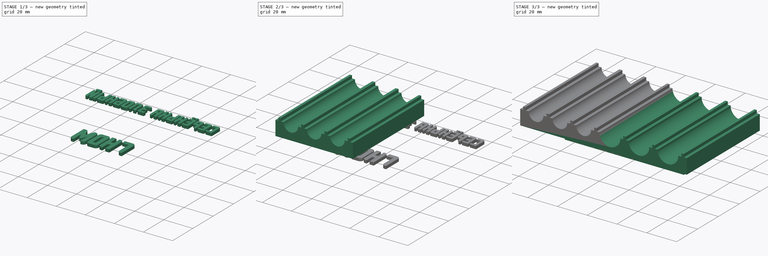
[diagram: build sequence overview — one tinted view per stage of 3, left to right]
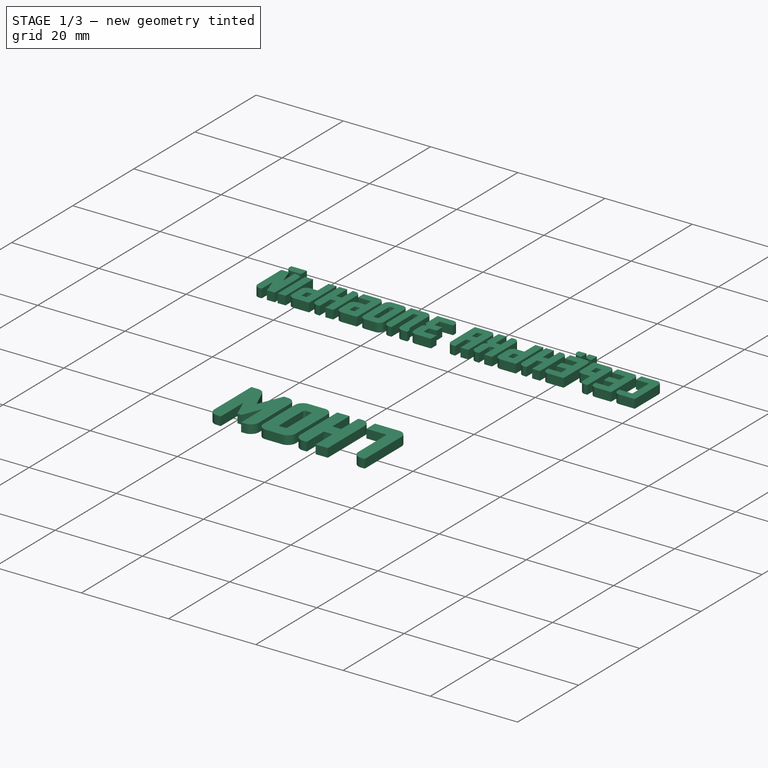
[diagram: stage 1 of 3 — iso view after this stage's code; geometry added in this stage tinted green]
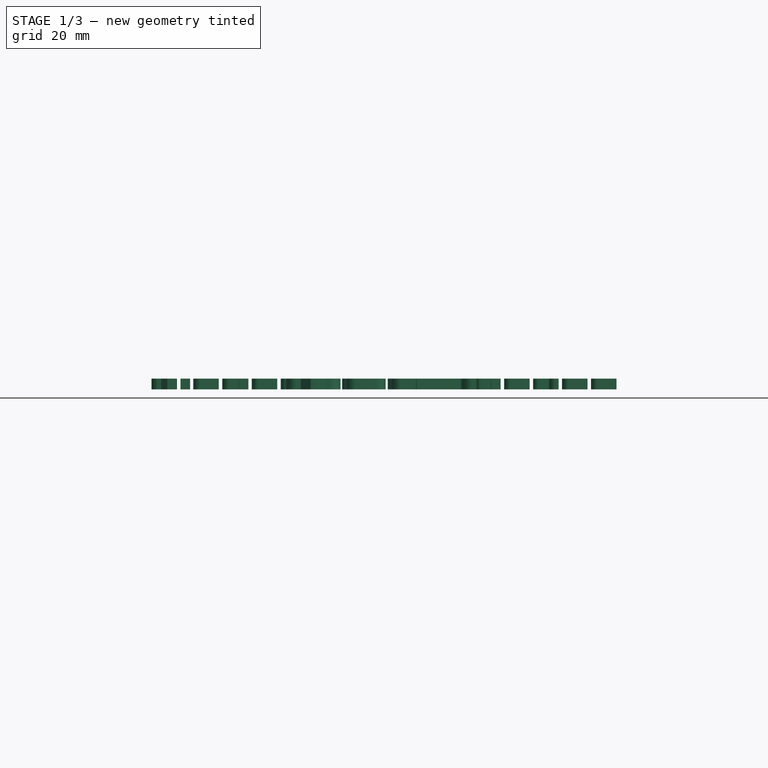
[diagram: stage 1 of 3 — front view after this stage's code; geometry added in this stage tinted green]
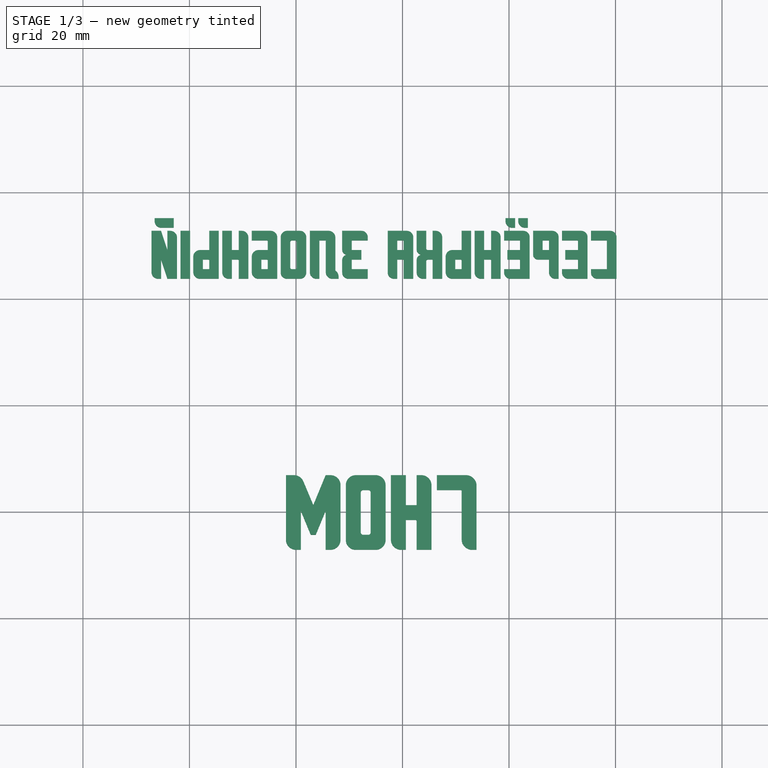
[diagram: stage 1 of 3 — top view after this stage's code; geometry added in this stage tinted green]
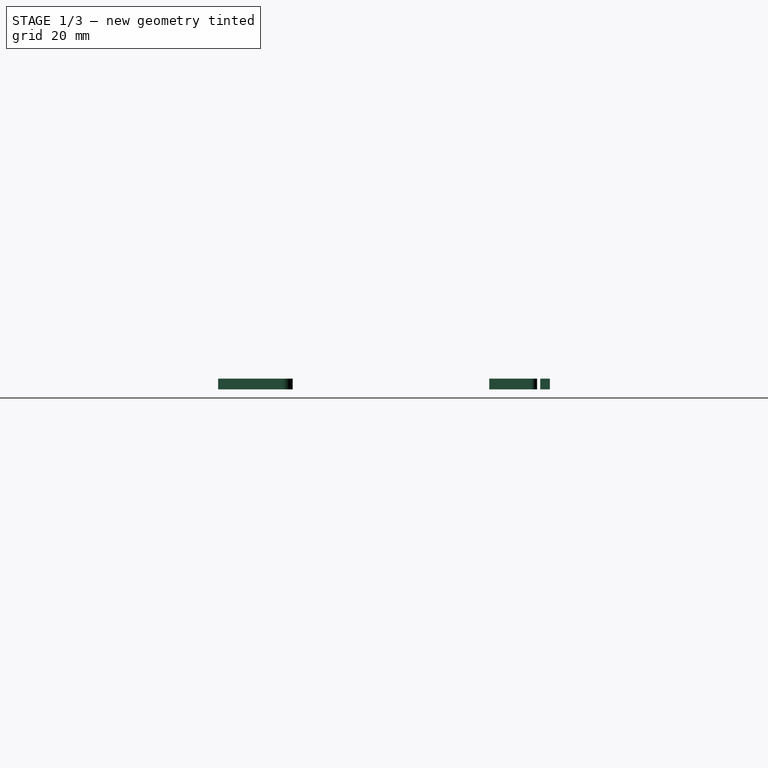
[diagram: stage 1 of 3 — right view after this stage's code; geometry added in this stage tinted green]
FCSTD DOCUMENT  (FreeCAD 1.1R39757 (Git))
Label: Каток влада 2
License: All rights reserved
LicenseURL: https://en.wikipedia.org/wiki/All_rights_reserved
objects: Measure::MeasureDistance×4, Sketcher::SketchObject×3, PartDesign::Pad×3, PartDesign::LinearPattern×2, Part::Part2DObjectPython×2, Part::Extrusion×2, App::Point×1, Part::Feature×1, App::DocumentObjectGroup×1, PartDesign::Body×1, Part::MultiFuse×1
note: 26 computed .brp shape members not serialized (recipe doc carries the construction recipe); baked Part::Feature solids carry a one-line shape summary decoded from their .brp

FEATURE [PartDesign::Body] Body  label="Тело"
  AllowCompound = false
  Group = -> [Sketch,Pad,LinearPattern,Sketch001,Pad001,LinearPattern001,Sketch002,Pad002]
  Origin = -> Origin
  Tip = -> Pad002
FEATURE [Part::Part2DObjectPython] ShapeString  # Draft 2D object (typed FeaturePython)
  FontFile = <userpath>/ANVYL/ANVYL.ttf
  Fuse = false
  Justification = 6
  JustificationReference = 0
  KeepLeftMargin = false
  MakeFace = true
  ObliqueAngle = 0
  Placement = pos=(92.19,-16.2,0) rot=(0,1,0;3.14159rad)
  ScaleToSize = true
  Size = 9
  String = Серёнька Злобный
  Tracking = 0
FEATURE [Part::Part2DObjectPython] ShapeString001  # Draft 2D object (typed FeaturePython)
  FontFile = <userpath>/ANVYL/ANVYL.ttf
  Fuse = false
  Justification = 6
  JustificationReference = 0
  KeepLeftMargin = false
  MakeFace = true
  ObliqueAngle = 0
  Placement = pos=(65.91,-67.09,9e-16) rot=(0,1,0;3.14159rad)
  ScaleToSize = true
  Size = 14
  String = ГНОМ
  Tracking = 0
FEATURE [Part::Extrusion] Extrude001
  Base = -> ShapeString
  Dir = (0,0,-1)
  DirMode = 2
  FaceMakerClass = Part::FaceMakerBullseye
  FaceMakerMode = 3
  LengthFwd = 2
  LengthRev = 0
  Solid = false
  Symmetric = false
FEATURE [Part::Extrusion] Extrude002
  Base = -> ShapeString001
  Dir = (0,0,-1)
  DirMode = 2
  FaceMakerClass = Part::FaceMakerBullseye
  FaceMakerMode = 3
  LengthFwd = 2
  LengthRev = 0
  Solid = false
  Symmetric = false
FEATURE [Part::MultiFuse] Fusion
  Placement = pos=(8,0,0) rot=(0,0,1;0rad)
  Refine = true
  Shapes = -> [Extrude001,Extrude002]
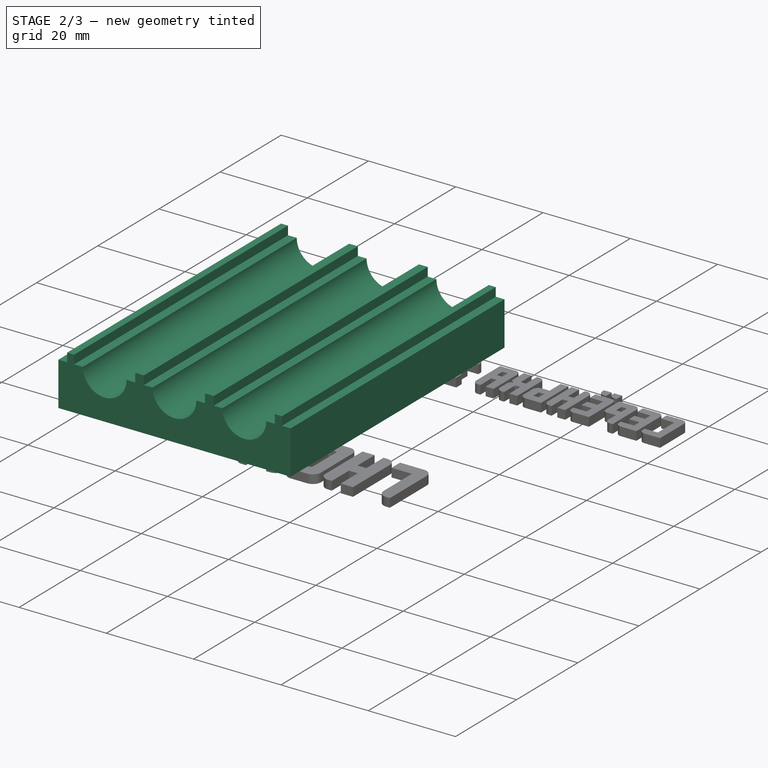
[diagram: stage 2 of 3 — iso view after this stage's code; geometry added in this stage tinted green]
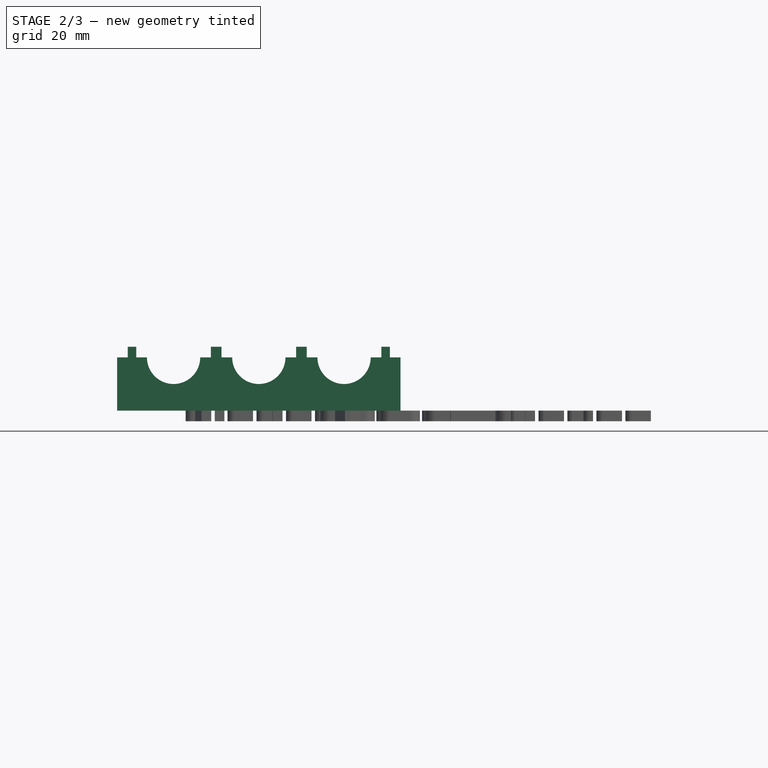
[diagram: stage 2 of 3 — front view after this stage's code; geometry added in this stage tinted green]
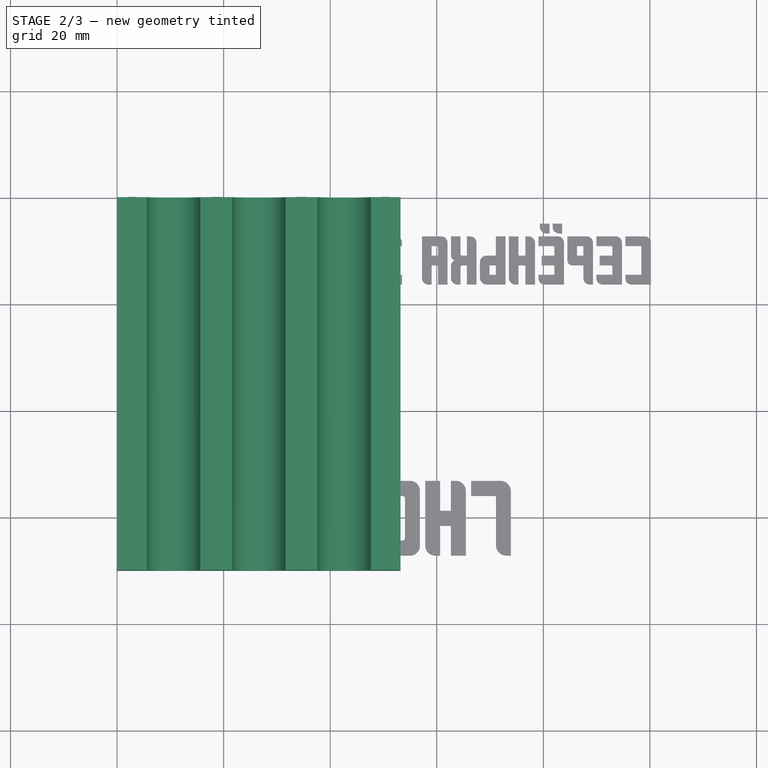
[diagram: stage 2 of 3 — top view after this stage's code; geometry added in this stage tinted green]
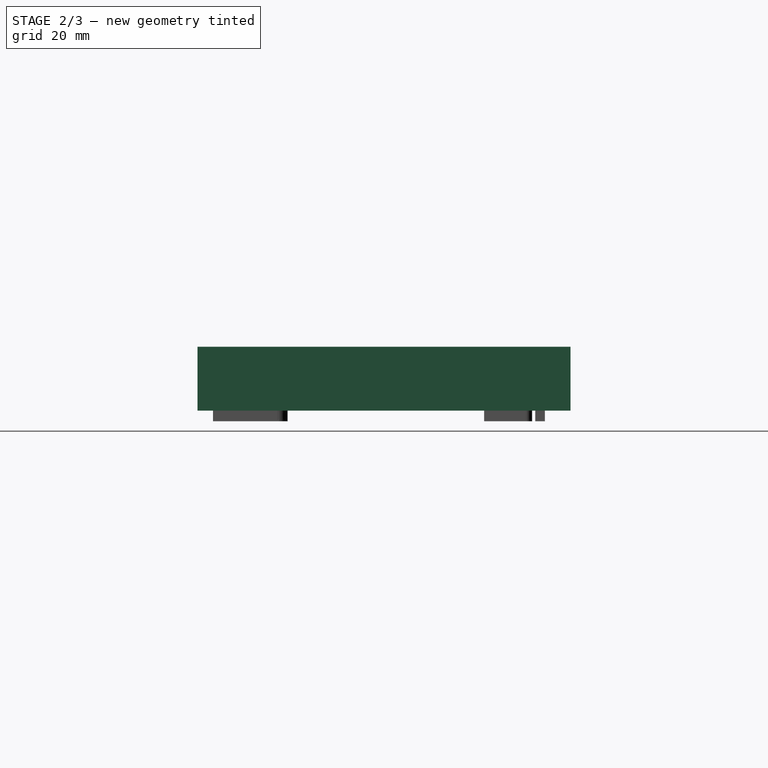
[diagram: stage 2 of 3 — right view after this stage's code; geometry added in this stage tinted green]
FEATURE [App::Point] Origin001
  Role = Origin
FEATURE [Sketcher::SketchObject] Sketch
  ArcFitTolerance = 1e-06
  AttachmentSupport = -> [XZ_Plane]
  ExternalTypes = [0]
  FullyConstrained = true
  MakeInternals = false
  MapMode = 5
  Placement = pos=(0,0,0) rot=(1,0,0;1.5708rad)
  sketch-geometry (14):
    g0: ArcOfCircle CenterX=10.6 CenterY=10 CenterZ=0 NormalX=0 NormalY=0 NormalZ=1 AngleXU=0 Radius=5 StartAngle=3.14159 EndAngle=6.28319
    g1: LineSegment StartX=5.6 StartY=10 StartZ=0 EndX=3.6 EndY=10 EndZ=0
    g2: LineSegment StartX=3.6 StartY=10 StartZ=0 EndX=3.6 EndY=12 EndZ=0
    g3: LineSegment StartX=3.6 StartY=12 StartZ=0 EndX=2 EndY=12 EndZ=0
    g4: LineSegment StartX=2 StartY=12 StartZ=0 EndX=2 EndY=10 EndZ=0
    g5: LineSegment StartX=2 StartY=10 StartZ=0 EndX=0 EndY=10 EndZ=0
    g6: LineSegment StartX=0 StartY=10 StartZ=0 EndX=0 EndY=0 EndZ=0
    g7: LineSegment StartX=0 StartY=0 StartZ=0 EndX=21.2 EndY=0 EndZ=0
    g8: LineSegment StartX=21.2 StartY=0 StartZ=0 EndX=21.2 EndY=10 EndZ=0
    g9: LineSegment StartX=15.6 StartY=10 StartZ=0 EndX=17.6 EndY=10 EndZ=0
    g10: LineSegment StartX=17.6 StartY=10 StartZ=0 EndX=17.6 EndY=12 EndZ=0
    g11: LineSegment StartX=17.6 StartY=12 StartZ=0 EndX=19.2 EndY=12 EndZ=0
    g12: LineSegment StartX=19.2 StartY=12 StartZ=0 EndX=19.2 EndY=10 EndZ=0
    g13: LineSegment StartX=19.2 StartY=10 StartZ=0 EndX=21.2 EndY=10 EndZ=0
  constraints (44):
    c: Horizontal(g0,g0)
    c: Horizontal(g0,g0)
    c: Radius(g0) = 5
    c: Horizontal(g1)
    c: Coincident(g1,g2)
    c: Vertical(g2)
    c: Coincident(g2,g3)
    c: Coincident(g3,g4)
    c: Coincident(g4,g5)
    c: DistanceX(g1,g1) = 2
    c: DistanceY(g2,g2) = 2
    c: Vertical(g4)
    c: Horizontal(g5)
    c: Horizontal(g4,g1)
    c: Equal(g1,g5)
    c: Horizontal(g3)
    c: DistanceX(g3,g3) = 1.6
    c: Coincident(g1,g0)
    c: Coincident(g5,g6)
    c: Vertical(g6)
    c: Coincident(g6,g7)
    c: Horizontal(g7)
    c: Coincident(g7,g8)
    c: Vertical(g8)
    c: Coincident(g9,g10)
    c: Coincident(g10,g11)
    c: Coincident(g11,g12)
    c: Coincident(g12,g13)
    c: Coincident(g13,g8)
    c: Horizontal(g9)
    c: Vertical(g10)
    c: Horizontal(g11)
    c: Vertical(g12)
    c: Horizontal(g13)
    c: Equal(g9,g13)
    c: Equal(g9,g1)
    c: Coincident(g9,g0)
    c: Equal(g10,g2)
    c: Equal(g11,g3)
    c: Horizontal(g12,g9)
    c: Distance(g0,g7) = 5
    c: Coincident(g6,g-1)
    c: DistanceX(g7,g7) = 21.2
    c: DistanceX(g4,g12) = 17.2
FEATURE [PartDesign::Pad] Pad
  Direction = (0,-1,2e-16)
  Length = 70
  Length2 = 10
  Placement = pos=(0,0,0) rot=(1,0,0;1.5708rad)
  Profile = -> Sketch
  ReferenceAxis = -> Sketch [N_Axis]
  Refine = true
  Suppressed = false
  Type = 0
FEATURE [PartDesign::LinearPattern] LinearPattern
  BaseFeature = -> Pad
  Direction = -> Sketch [H_Axis]
  Length = 32
  Mode = 0
  Occurrences = 3
  Offset = 16
  Originals = -> [Pad]
  Placement = pos=(0,0,0) rot=(1,0,0;1.5708rad)
  Refine = true
  Suppressed = false
  TransformMode = 0
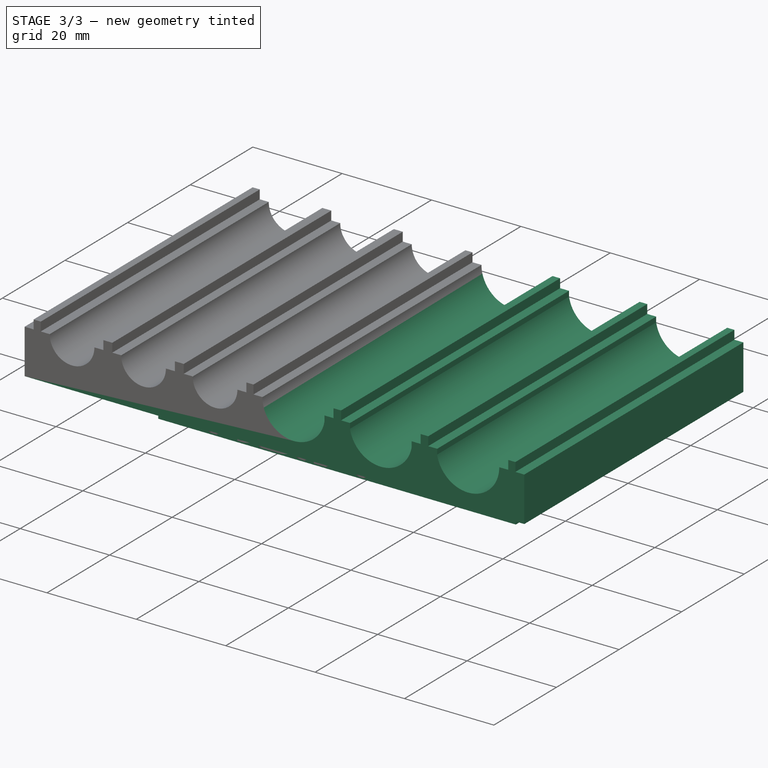
[diagram: stage 3 of 3 — iso view after this stage's code; geometry added in this stage tinted green]
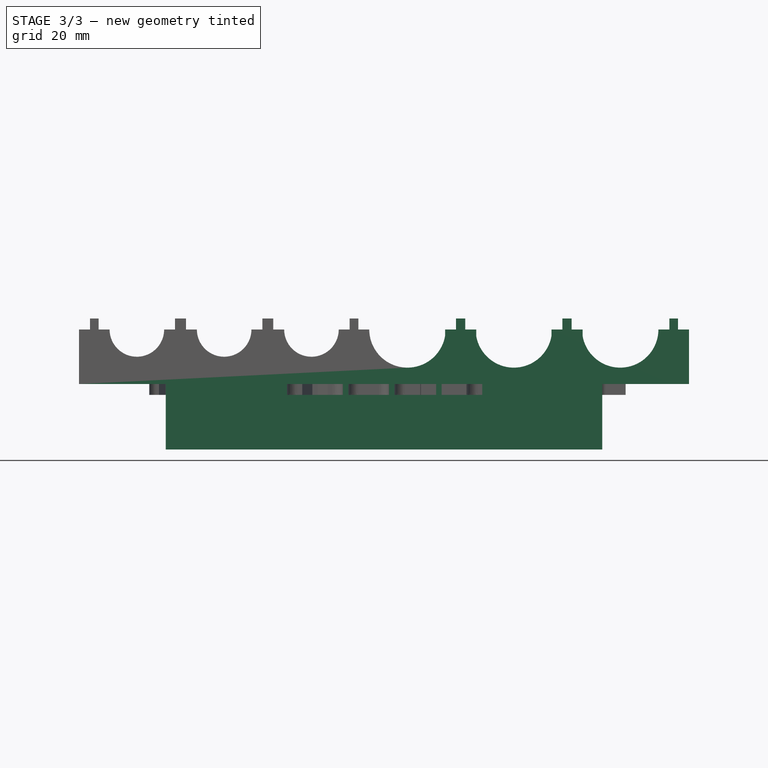
[diagram: stage 3 of 3 — front view after this stage's code; geometry added in this stage tinted green]
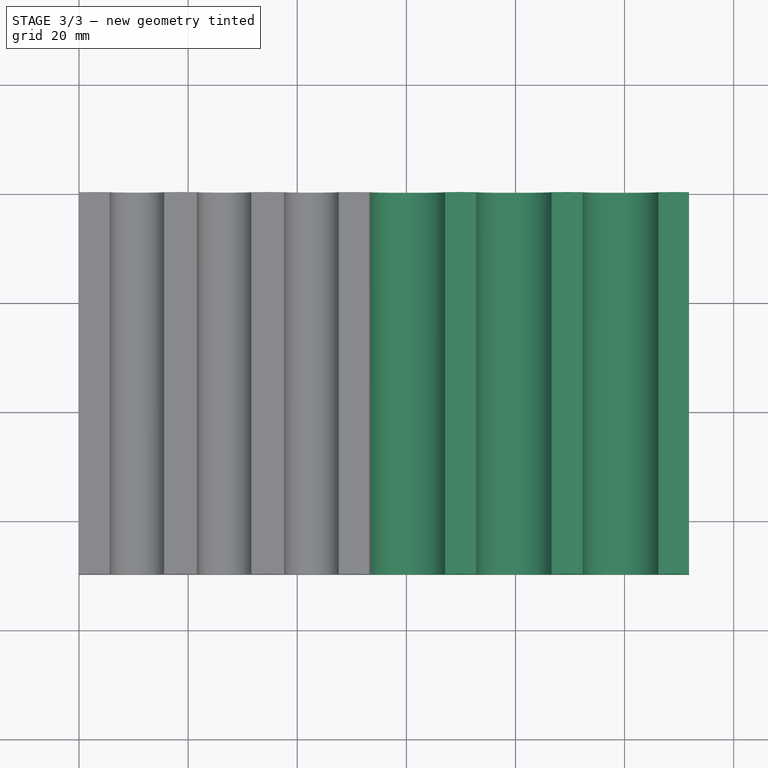
[diagram: stage 3 of 3 — top view after this stage's code; geometry added in this stage tinted green]
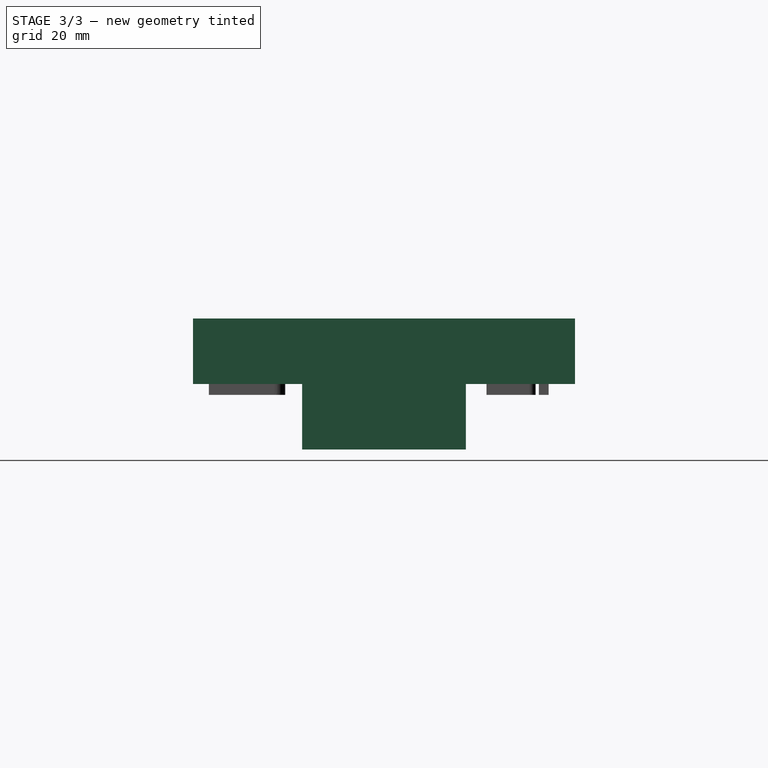
[diagram: stage 3 of 3 — right view after this stage's code; geometry added in this stage tinted green]
FEATURE [Sketcher::SketchObject] Sketch001
  ArcFitTolerance = 1e-06
  ExternalGeometry = -> [LinearPattern]
  ExternalTypes = [0,0,0]
  FullyConstrained = true
  MakeInternals = false
  MapMode = 5
  Placement = pos=(0,0,0) rot=(-1,0,0;1.5708rad)
  sketch-geometry (14):
    g0: ArcOfCircle CenterX=60.2 CenterY=-10 CenterZ=0 NormalX=0 NormalY=0 NormalZ=1 AngleXU=0 Radius=7 StartAngle=0 EndAngle=3.14159
    g1: LineSegment StartX=47.6 StartY=-10 StartZ=0 EndX=49.6 EndY=-10 EndZ=0
    g2: LineSegment StartX=49.6 StartY=-10 StartZ=0 EndX=49.6 EndY=-12 EndZ=0
    g3: LineSegment StartX=49.6 StartY=-12 StartZ=0 EndX=51.2 EndY=-12 EndZ=0
    g4: LineSegment StartX=51.2 StartY=-12 StartZ=0 EndX=51.2 EndY=-10 EndZ=0
    g5: LineSegment StartX=51.2 StartY=-10 StartZ=0 EndX=53.2 EndY=-10 EndZ=0
    g6: LineSegment StartX=47.6 StartY=-10 StartZ=0 EndX=47.6 EndY=0 EndZ=0
    g7: LineSegment StartX=47.6 StartY=0 StartZ=0 EndX=72.8 EndY=0 EndZ=0
    g8: LineSegment StartX=72.8 StartY=0 StartZ=0 EndX=72.8 EndY=-10 EndZ=0
    g9: LineSegment StartX=72.8 StartY=-10 StartZ=0 EndX=70.8 EndY=-10 EndZ=0
    g10: LineSegment StartX=70.8 StartY=-10 StartZ=0 EndX=70.8 EndY=-12 EndZ=0
    g11: LineSegment StartX=70.8 StartY=-12 StartZ=0 EndX=69.2 EndY=-12 EndZ=0
    g12: LineSegment StartX=69.2 StartY=-12 StartZ=0 EndX=69.2 EndY=-10 EndZ=0
    g13: LineSegment StartX=69.2 StartY=-10 StartZ=0 EndX=67.2 EndY=-10 EndZ=0
  constraints (39):
    c: Radius(g0) = 7
    c: Horizontal(g0,g0)
    c: Horizontal(g0,g0)
    c: Coincident(g2,g3)
    c: Coincident(g3,g4)
    c: Vertical(g4)
    c: Coincident(g4,g5)
    c: Coincident(g5,g0)
    c: PointOnObject(g6,g-1)
    c: Vertical(g6)
    c: Coincident(g6,g7)
    c: PointOnObject(g7,g-1)
    c: Coincident(g7,g8)
    c: Vertical(g8)
    c: Coincident(g8,g9)
    c: Coincident(g9,g10)
    c: Coincident(g10,g11)
    c: Coincident(g11,g12)
    c: Coincident(g12,g13)
    c: Coincident(g13,g0)
    c: Vertical(g12)
    c: Horizontal(g13)
    c: Horizontal(g11)
    c: Vertical(g10)
    c: Horizontal(g9)
    c: Horizontal(g9,g12)
    c: Equal(g9,g13)
    c: Equal(g13,g5)
    c: Equal(g12,g4)
    c: Equal(g11,g3)
    c: Horizontal(g5)
    c: Coincident(g1,g6)
    c: Horizontal(g1,g4)
    c: Coincident(g2,g1)
    c: Equal(g5,g1)
    c: Coincident(g1,g-3)
    c: Coincident(g1,g-3)
    c: Coincident(g2,g-5)
    c: Coincident(g3,g-5)
FEATURE [PartDesign::Pad] Pad001
  BaseFeature = -> LinearPattern
  Direction = (0,1,2e-16)
  Length = 70
  Length2 = 10
  Placement = pos=(0,0,0) rot=(1,0,0;1.5708rad)
  Profile = -> Sketch001
  ReferenceAxis = -> Sketch001 [N_Axis]
  Refine = true
  Reversed = true
  Suppressed = false
  Type = 0
FEATURE [PartDesign::LinearPattern] LinearPattern001
  BaseFeature = -> Pad001
  Direction = -> Sketch001 [H_Axis]
  Length = 39
  Mode = 0
  Occurrences = 3
  Offset = 19.5
  Originals = -> [Pad001]
  Placement = pos=(0,0,0) rot=(1,0,0;1.5708rad)
  Refine = true
  Suppressed = false
  TransformMode = 0
FEATURE [Part::Feature] _6mm_top001
  shape: bbox 120 x 70 x 24 mm, 7716 faces, 0 solids (baked)
FEATURE [Measure::MeasureDistance] Distance  label="Distance: 70,00 mm"
  Distance = 70
  DistanceX = 0
  DistanceY = 70
  DistanceZ = 1.42e-14
  Element1 = -> _6mm_top001 [Edge151]
  Element2 = -> _6mm_top001 [Edge4010]
  Position1 = (120,70,75)
  Position2 = (120,-3.66e-14,75)
FEATURE [Measure::MeasureDistance] Distance001  label="Distance001: 30,00 mm"
  Distance = 30
  DistanceX = 0
  DistanceY = 30
  DistanceZ = 7.1e-15
  Element1 = -> _6mm_top001 [Edge2]
  Element2 = -> _6mm_top001 [Edge4]
  Position1 = (20,50,63)
  Position2 = (20,20,63)
FEATURE [Measure::MeasureDistance] Distance002  label="Distance002: 80,00 mm"
  Distance = 80
  DistanceX = 80
  DistanceY = 0
  DistanceZ = 0
  Element1 = -> _6mm_top001 [Edge5]
  Element2 = -> _6mm_top001 [Edge1]
  Position1 = (100,50,63)
  Position2 = (20,50,63)
FEATURE [Measure::MeasureDistance] Distance003  label="Distance003: 12,00 mm"
  Distance = 12
  DistanceX = 0
  DistanceY = 0
  DistanceZ = 12
  Element1 = -> _6mm_top001 [Edge5]
  Element2 = -> _6mm_top001 [Edge16]
  Position1 = (100,50,63)
  Position2 = (100,50,75)
FEATURE [App::DocumentObjectGroup] Measurements
  Group = -> [Distance,Distance001,Distance002,Distance003]
FEATURE [Sketcher::SketchObject] Sketch002
  ArcFitTolerance = 1e-06
  AttachmentSupport = -> [LinearPattern001]
  ExternalGeometry = -> [LinearPattern001]
  ExternalTypes = [0,0]
  FullyConstrained = true
  MakeInternals = false
  MapMode = 5
  Placement = pos=(0,0,0) rot=(1,0,0;3.14159rad)
  sketch-geometry (5):
    g0: LineSegment StartX=15.9 StartY=50 StartZ=0 EndX=15.9 EndY=20 EndZ=0
    g1: LineSegment StartX=15.9 StartY=20 StartZ=0 EndX=95.9 EndY=20 EndZ=0
    g2: LineSegment StartX=95.9 StartY=20 StartZ=0 EndX=95.9 EndY=50 EndZ=0
    g3: LineSegment StartX=95.9 StartY=50 StartZ=0 EndX=15.9 EndY=50 EndZ=0
    g4: GeomPoint X=55.9 Y=35 Z=0
  constraints (12):
    c: Coincident(g0,g1)
    c: Coincident(g1,g2)
    c: Coincident(g2,g3)
    c: Coincident(g3,g0)
    c: Vertical(g0)
    c: Vertical(g2)
    c: Horizontal(g1)
    c: Horizontal(g3)
    c: Symmetric(g-4,g-1,g4)
    c: Symmetric(g2,g0,g4)
    c: DistanceX(g3,g3) = 80
    c: DistanceY(g0,g0) = 30
FEATURE [PartDesign::Pad] Pad002
  BaseFeature = -> LinearPattern001
  Direction = (0,0,-1)
  Length = 12
  Length2 = 10
  Placement = pos=(0,0,0) rot=(1,0,0;1.5708rad)
  Profile = -> Sketch002
  ReferenceAxis = -> Sketch002 [N_Axis]
  Refine = true
  Suppressed = false
  Type = 0
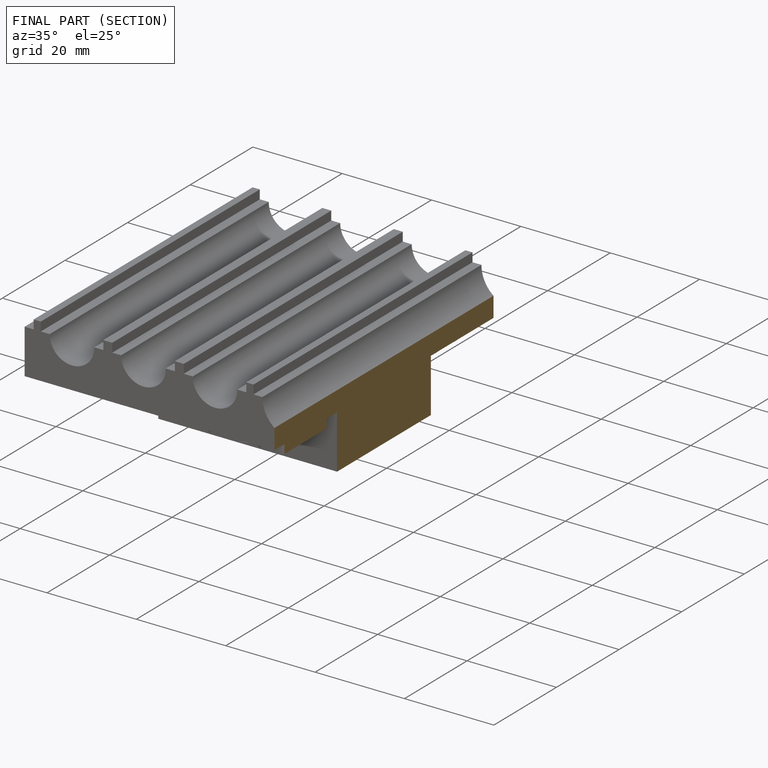
[diagram: finished part — half-section view (interior)]
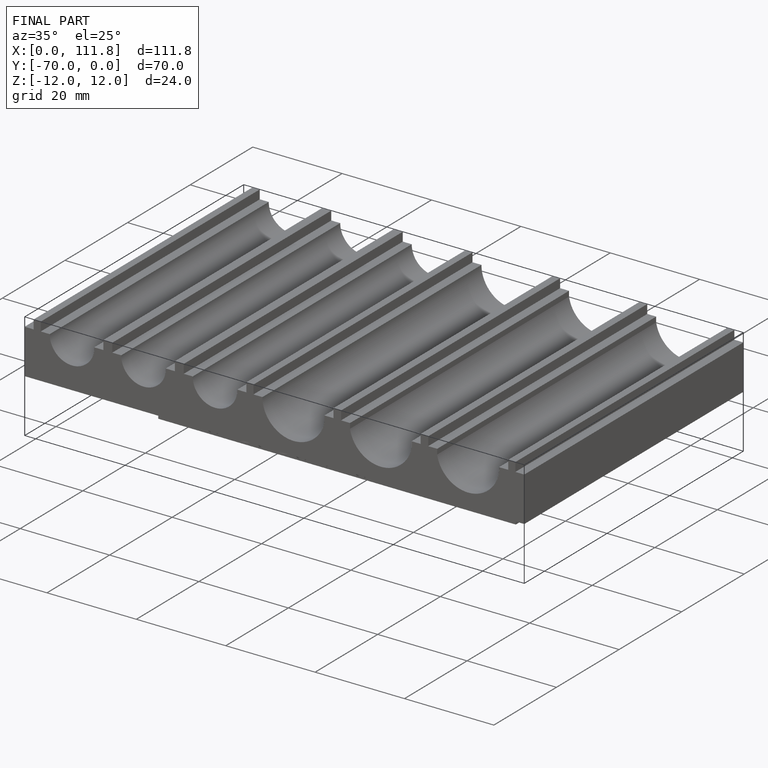
[diagram: finished part — iso view with bounding-box wireframe]
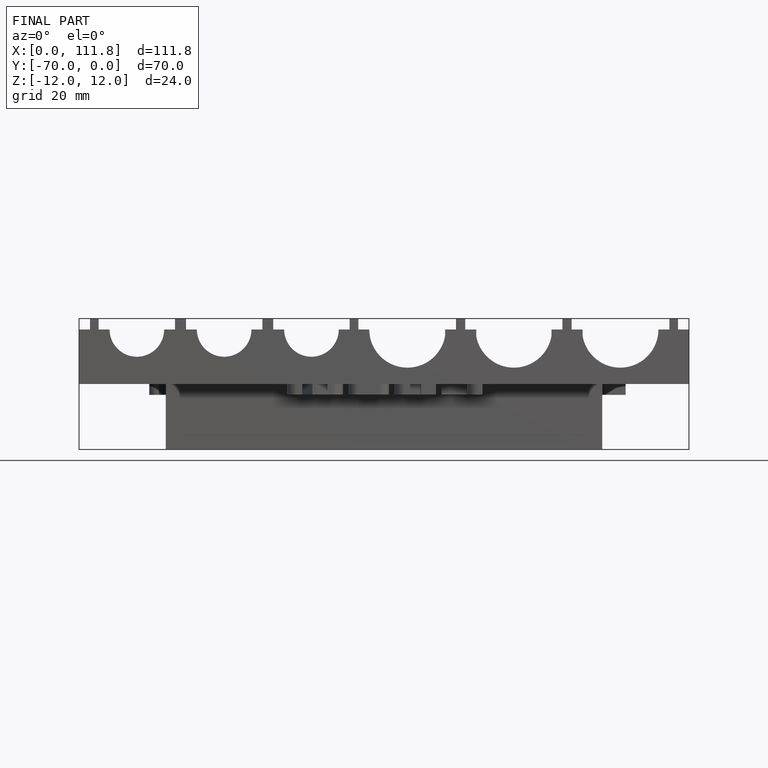
[diagram: finished part — front view with bounding-box wireframe]
